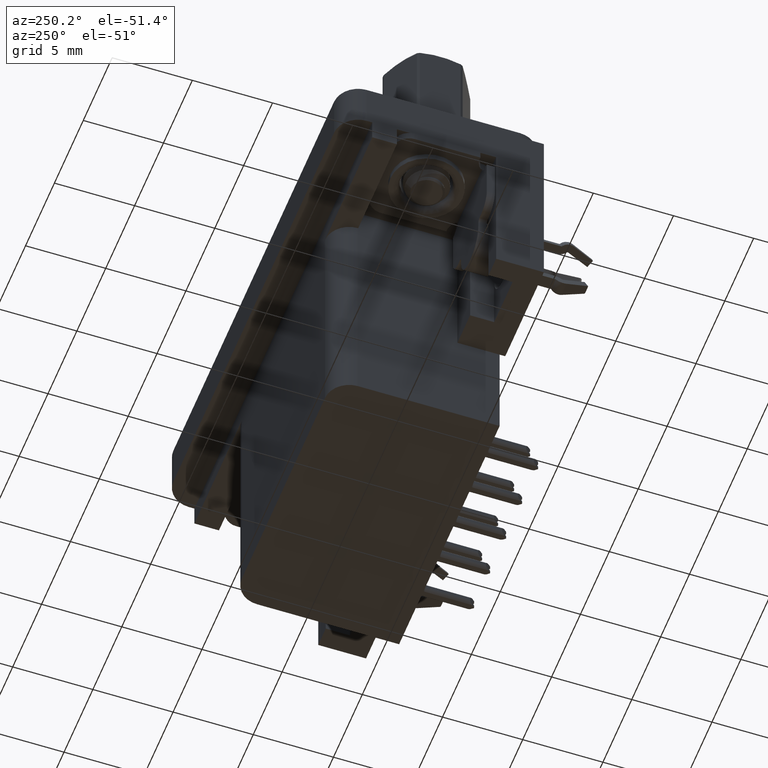
[diagram: clean part render]
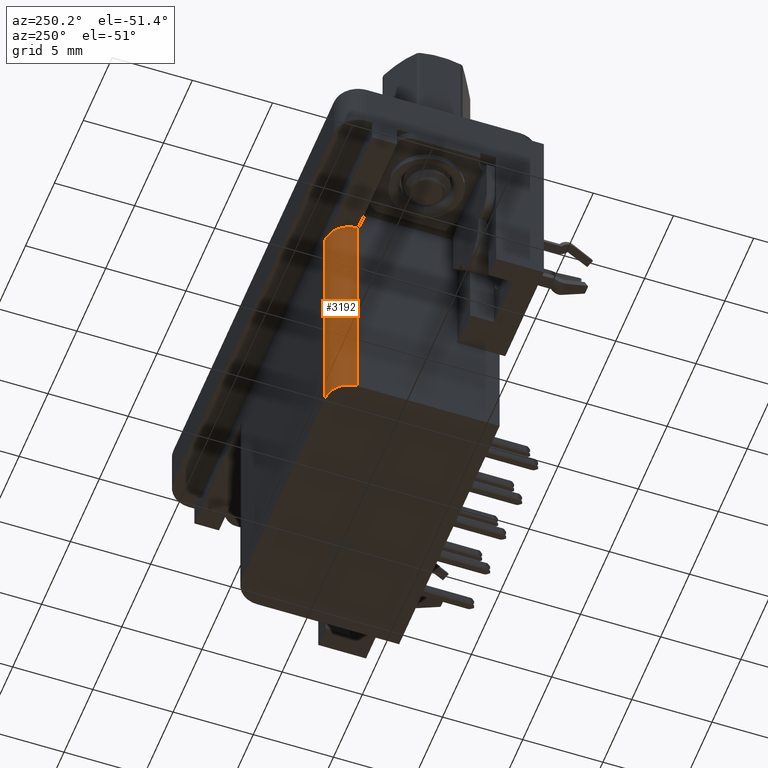
[diagram: same view with one face highlighted and labeled with its STEP entity id]
A machine part, auxiliary view. The second image highlights one B-rep face of the part: STEP entity #3192.
In plain terms, the highlighted cylindrical surface (edge-blend (fillet) strip) has radius 1.5 mm, axis along (0, 0, 1).
Its self-contained STEP definition (entity closure, byte-faithful):
#498 = VERTEX_POINT ( 'NONE', #3731 ) ;
#659 = DIRECTION ( 'NONE',  ( 0.0000000000000000000, 0.0000000000000000000, -1.000000000000000000 ) ) ;
#2445 = ORIENTED_EDGE ( 'NONE', *, *, #28339, .T. ) ;
#3192 = ADVANCED_FACE ( 'NONE', ( #11080 ), #29174, .T. ) ;
#3731 = CARTESIAN_POINT ( 'NONE',  ( 5.289999999999994700, 4.424999999999992700, -18.75999999999999800 ) ) ;
#5414 = AXIS2_PLACEMENT_3D ( 'NONE', #25280, #13530, #27652 ) ;
#8649 = EDGE_LOOP ( 'NONE', ( #23867, #2445, #14020, #15141 ) ) ;
#9870 = CARTESIAN_POINT ( 'NONE',  ( 3.789999999999993400, 2.924999999999992300, -3.900000000000000800 ) ) ;
#10354 = LINE ( 'NONE', #13543, #22908 ) ;
#11080 = FACE_OUTER_BOUND ( 'NONE', #8649, .T. ) ;
#11387 = DIRECTION ( 'NONE',  ( 0.0000000000000000000, -0.0000000000000000000, -1.000000000000000000 ) ) ;
#11711 = VECTOR ( 'NONE', #20239, 1000.000000000000000 ) ;
#12387 = CIRCLE ( 'NONE', #24764, 1.500000000000000400 ) ;
#13530 = DIRECTION ( 'NONE',  ( -0.0000000000000000000, -0.0000000000000000000, 1.000000000000000000 ) ) ;
#13543 = CARTESIAN_POINT ( 'NONE',  ( 5.289999999999994700, 4.424999999999992700, -18.75999999999999800 ) ) ;
#14020 = ORIENTED_EDGE ( 'NONE', *, *, #14496, .F. ) ;
#14496 = EDGE_CURVE ( 'NONE', #498, #29847, #10354, .T. ) ;
#14801 = CARTESIAN_POINT ( 'NONE',  ( 5.289999999999994700, 2.924999999999992300, -18.75999999999999800 ) ) ;
#15141 = ORIENTED_EDGE ( 'NONE', *, *, #28621, .F. ) ;
#15651 = CIRCLE ( 'NONE', #16250, 1.500000000000000400 ) ;
#16037 = CARTESIAN_POINT ( 'NONE',  ( 5.289999999999993800, 4.424999999999992700, -3.899999999999999900 ) ) ;
#16250 = AXIS2_PLACEMENT_3D ( 'NONE', #14801, #659, #17169 ) ;
#17169 = DIRECTION ( 'NONE',  ( -1.000000000000000000, 0.0000000000000000000, 0.0000000000000000000 ) ) ;
#17841 = CARTESIAN_POINT ( 'NONE',  ( 3.789999999999993400, 2.924999999999992300, -18.75999999999999800 ) ) ;
#20239 = DIRECTION ( 'NONE',  ( -0.0000000000000000000, -0.0000000000000000000, 1.000000000000000000 ) ) ;
#20837 = VERTEX_POINT ( 'NONE', #9870 ) ;
#22908 = VECTOR ( 'NONE', #30036, 1000.000000000000000 ) ;
#23867 = ORIENTED_EDGE ( 'NONE', *, *, #25655, .T. ) ;
#24764 = AXIS2_PLACEMENT_3D ( 'NONE', #25508, #11387, #27874 ) ;
#24847 = CARTESIAN_POINT ( 'NONE',  ( 3.789999999999993400, 2.924999999999992300, -18.75999999999999800 ) ) ;
#25280 = CARTESIAN_POINT ( 'NONE',  ( 5.289999999999994700, 2.924999999999992300, -18.75999999999999800 ) ) ;
#25508 = CARTESIAN_POINT ( 'NONE',  ( 5.289999999999994700, 2.924999999999992300, -3.900000000000000800 ) ) ;
#25655 = EDGE_CURVE ( 'NONE', #29733, #20837, #29783, .T. ) ;
#27652 = DIRECTION ( 'NONE',  ( 1.000000000000000000, 0.0000000000000000000, 0.0000000000000000000 ) ) ;
#27874 = DIRECTION ( 'NONE',  ( 1.000000000000000000, 8.673617379884032500E-016, 0.0000000000000000000 ) ) ;
#28339 = EDGE_CURVE ( 'NONE', #20837, #29847, #12387, .T. ) ;
#28621 = EDGE_CURVE ( 'NONE', #29733, #498, #15651, .T. ) ;
#29174 = CYLINDRICAL_SURFACE ( 'NONE', #5414, 1.500000000000000400 ) ;
#29733 = VERTEX_POINT ( 'NONE', #24847 ) ;
#29783 = LINE ( 'NONE', #17841, #11711 ) ;
#29847 = VERTEX_POINT ( 'NONE', #16037 ) ;
#30036 = DIRECTION ( 'NONE',  ( -0.0000000000000000000, -0.0000000000000000000, 1.000000000000000000 ) ) ;